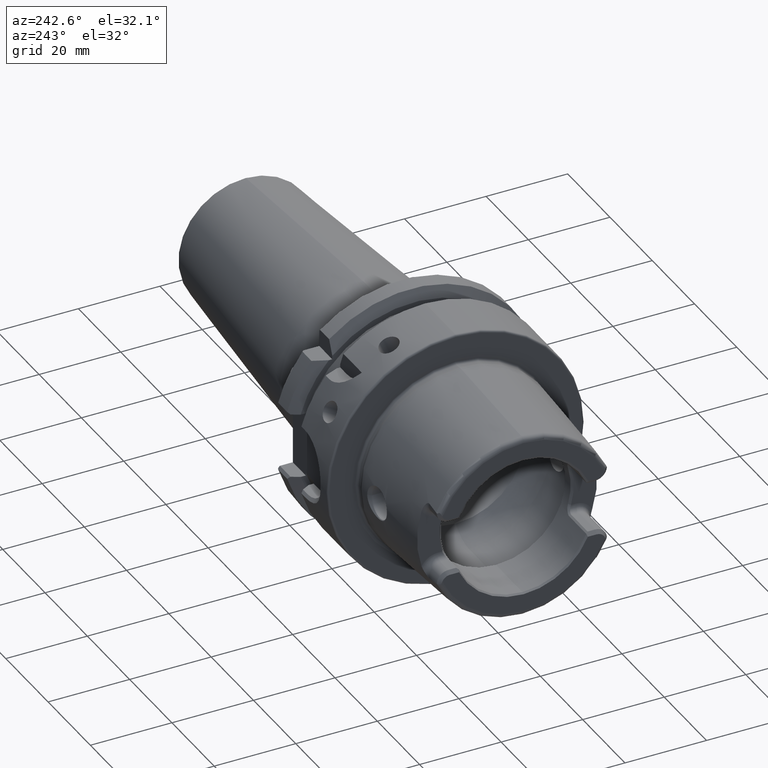
[diagram: clean part render]
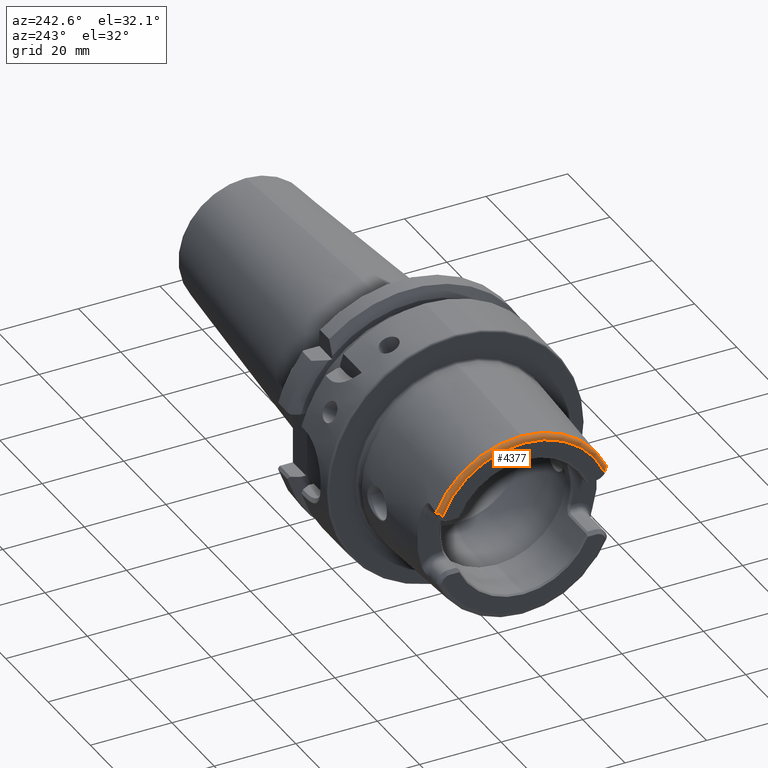
[diagram: same view with one face highlighted and labeled with its STEP entity id]
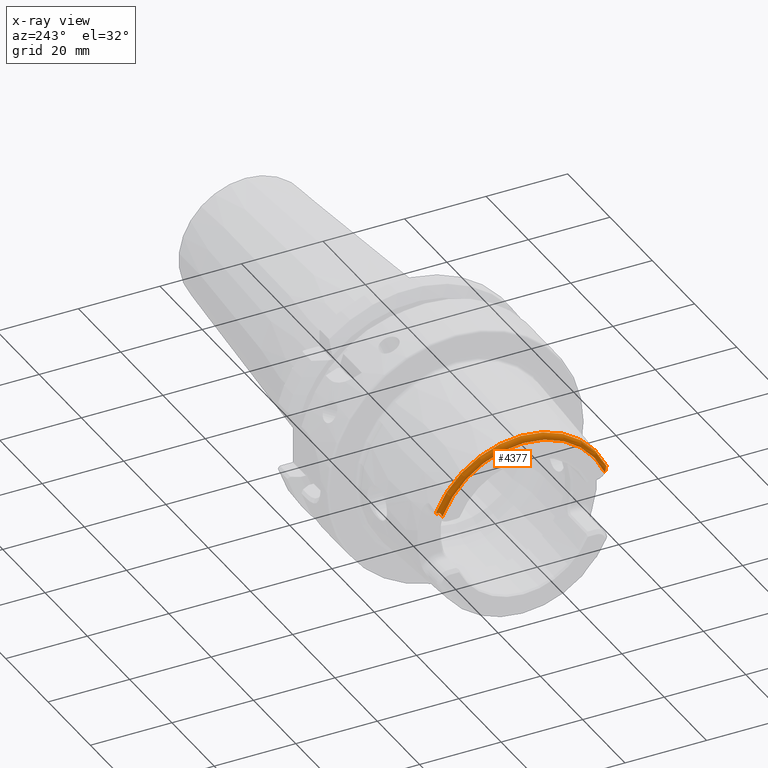
[diagram: x-ray of the same camera — body ghosted, the highlighted face saturated]
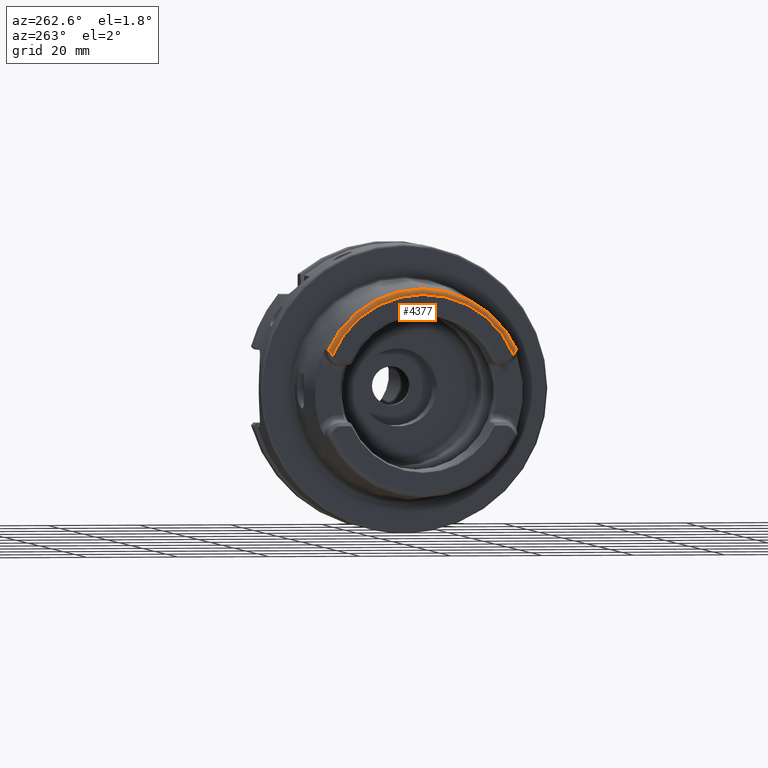
[diagram: same view with one face highlighted and labeled with its STEP entity id]
A machine part, auxiliary view. The second image highlights one B-rep face of the part: STEP entity #4377.
The next image is the same camera in x-ray: the body ghosted, the highlighted face saturated — about 0% of this face is hidden behind the body in this view.
A second angle (auxiliary view) of the same face is appended — the face is thin or edge-on in the first view.
In plain terms, the highlighted toroidal blend (fillet) surface has major radius 21.5761 mm and minor (blend) radius 1.2 mm.
Its self-contained STEP definition (entity closure, byte-faithful):
#12=CARTESIAN_POINT('',(-3.086004333271E1,0.E0,0.E0));
#13=DIRECTION('',(-1.E0,0.E0,0.E0));
#14=DIRECTION('',(0.E0,0.E0,1.E0));
#15=AXIS2_PLACEMENT_3D('',#12,#13,#14);
#1136=CARTESIAN_POINT('',(-3.086004333271E1,0.E0,0.E0));
#1137=DIRECTION('',(-1.E0,0.E0,0.E0));
#1138=DIRECTION('',(0.E0,-9.163649919573E-1,4.003438540993E-1));
#1139=AXIS2_PLACEMENT_3D('',#1136,#1137,#1138);
#1264=CARTESIAN_POINT('',(-3.12E1,2.086388901270E1,8.962484820140E0));
#1265=CARTESIAN_POINT('',(-3.114508193134E1,2.086667555068E1,9.005191767334E0));
#1266=CARTESIAN_POINT('',(-3.103476277035E1,2.086936614309E1,9.074974383683E0));
#1267=CARTESIAN_POINT('',(-3.091911920504E1,2.086973746634E1,9.110451561292E0));
#1268=CARTESIAN_POINT('',(-3.086004333271E1,2.086981840766E1,9.117659021249E0));
#1325=CARTESIAN_POINT('',(-3.12E1,2.086388901270E1,8.962484820140E0));
#1326=CARTESIAN_POINT('',(-3.123224973658E1,2.083419592954E1,9.002719514151E0));
#1327=CARTESIAN_POINT('',(-3.129620781423E1,2.077348032161E1,9.078060961540E0));
#1328=CARTESIAN_POINT('',(-3.139112717715E1,2.067924288417E1,9.173065271035E0));
#1329=CARTESIAN_POINT('',(-3.149177258252E1,2.057662536724E1,9.247948063830E0));
#1330=CARTESIAN_POINT('',(-3.159531222419E1,2.047098041171E1,9.285171175677E0));
#1331=CARTESIAN_POINT('',(-3.170118305740E1,2.036633756939E1,9.261970852533E0));
#1332=CARTESIAN_POINT('',(-3.179673840429E1,2.027428746545E1,9.166736549867E0));
#1333=CARTESIAN_POINT('',(-3.187255760131E1,2.019571142228E1,9.025234320014E0));
#1334=CARTESIAN_POINT('',(-3.192769354344E1,2.012626637534E1,8.869730746078E0));
#1335=CARTESIAN_POINT('',(-3.196904164143E1,2.005474275626E1,8.697024160456E0));
#1336=CARTESIAN_POINT('',(-3.199436015843E1,1.997975843364E1,8.514643442228E0));
#1337=CARTESIAN_POINT('',(-3.2E1,1.992871668258E1,8.393522095532E0));
#1338=CARTESIAN_POINT('',(-3.2E1,1.990238974402E1,8.331974653830E0));
#1340=CARTESIAN_POINT('',(-3.2E1,-1.990238974402E1,8.331974653830E0));
#1341=CARTESIAN_POINT('',(-3.2E1,-1.992820404578E1,8.392323646884E0));
#1342=CARTESIAN_POINT('',(-3.199459482397E1,-1.997824759926E1,
8.511050025283E0));
#1343=CARTESIAN_POINT('',(-3.197018283958E1,-2.005187318803E1,
8.689964576135E0));
#1344=CARTESIAN_POINT('',(-3.193090615025E1,-2.012146645820E1,
8.858427017470E0));
#1345=CARTESIAN_POINT('',(-3.187770014986E1,-2.018957491860E1,
9.011737174383E0));
#1346=CARTESIAN_POINT('',(-3.181170470046E1,-2.025931483277E1,
9.142036262052E0));
#1347=CARTESIAN_POINT('',(-3.172519430663E1,-2.034324279716E1,
9.244511180614E0));
#1348=CARTESIAN_POINT('',(-3.162295502402E1,-2.044322073957E1,
9.285994560789E0));
#1349=CARTESIAN_POINT('',(-3.151629898383E1,-2.055146680674E1,
9.261699484379E0));
#1350=CARTESIAN_POINT('',(-3.140915347590E1,-2.066103014214E1,
9.189133674289E0));
#1351=CARTESIAN_POINT('',(-3.130930135160E1,-2.076080858944E1,
9.092765783114E0));
#1352=CARTESIAN_POINT('',(-3.123713506791E1,-2.082969789126E1,
9.008814441803E0));
#1353=CARTESIAN_POINT('',(-3.12E1,-2.086388901270E1,8.962484820140E0));
#1355=CARTESIAN_POINT('',(-3.2E1,0.E0,0.E0));
#1356=DIRECTION('',(-1.E0,0.E0,0.E0));
#1357=DIRECTION('',(0.E0,-9.224287428258E-1,3.861673399044E-1));
#1358=AXIS2_PLACEMENT_3D('',#1355,#1356,#1357);
#1365=CARTESIAN_POINT('',(-3.086004333271E1,-2.086981840766E1,
9.117659021249E0));
#1366=CARTESIAN_POINT('',(-3.091979381169E1,-2.086973654204E1,
9.110369256957E0));
#1367=CARTESIAN_POINT('',(-3.103608390188E1,-2.086935414125E1,
9.074324780982E0));
#1368=CARTESIAN_POINT('',(-3.114562651794E1,-2.086664791840E1,
9.004768270448E0));
#1369=CARTESIAN_POINT('',(-3.12E1,-2.086388901270E1,8.962484820140E0));
#2762=CARTESIAN_POINT('',(-3.086004333271E1,0.E0,2.277456973022E1));
#2763=CARTESIAN_POINT('',(-3.086004333271E1,2.086981840766E1,9.117659021249E0));
#2764=VERTEX_POINT('',#2762);
#2765=VERTEX_POINT('',#2763);
#2766=CARTESIAN_POINT('',(-3.086004333271E1,-2.086981840766E1,
9.117659021249E0));
#2767=VERTEX_POINT('',#2766);
#2772=CARTESIAN_POINT('',(-3.2E1,-1.990238974402E1,8.331974653830E0));
#2773=VERTEX_POINT('',#2772);
#2780=CARTESIAN_POINT('',(-3.12E1,-2.086388901270E1,8.962484820140E0));
#2781=VERTEX_POINT('',#2780);
#2806=CARTESIAN_POINT('',(-3.2E1,1.990238974402E1,8.331974653830E0));
#2807=VERTEX_POINT('',#2806);
#2812=CARTESIAN_POINT('',(-3.12E1,2.086388901270E1,8.962484820140E0));
#2813=VERTEX_POINT('',#2812);
#4361=CARTESIAN_POINT('',(-3.08E1,0.E0,0.E0));
#4362=DIRECTION('',(1.E0,0.E0,0.E0));
#4363=DIRECTION('',(0.E0,-1.014813229860E-2,9.999485063796E-1));
#4364=AXIS2_PLACEMENT_3D('',#4361,#4362,#4363);
#4365=TOROIDAL_SURFACE('',#4364,2.157607283902E1,1.2E0);
#4366=ORIENTED_EDGE('',*,*,#4234,.F.);
#4367=ORIENTED_EDGE('',*,*,#4251,.T.);
#4368=ORIENTED_EDGE('',*,*,#3017,.F.);
#4369=ORIENTED_EDGE('',*,*,#4110,.F.);
#4371=ORIENTED_EDGE('',*,*,#4370,.T.);
#4373=ORIENTED_EDGE('',*,*,#4372,.F.);
#4374=ORIENTED_EDGE('',*,*,#4182,.T.);
#4375=EDGE_LOOP('',(#4366,#4367,#4368,#4369,#4371,#4373,#4374));
#4376=FACE_OUTER_BOUND('',#4375,.F.);
#4377=ADVANCED_FACE('',(#4376),#4365,.T.);
#16=CIRCLE('',#15,2.277456973022E1);
#1140=CIRCLE('',#1139,2.277456973022E1);
#1269=B_SPLINE_CURVE_WITH_KNOTS('',3,(#1264,#1265,#1266,#1267,#1268),
.UNSPECIFIED.,.F.,.F.,(4,1,4),(0.E0,5.E-1,1.E0),.UNSPECIFIED.);
#1339=B_SPLINE_CURVE_WITH_KNOTS('',3,(#1325,#1326,#1327,#1328,#1329,#1330,#1331,
#1332,#1333,#1334,#1335,#1336,#1337,#1338),.UNSPECIFIED.,.F.,.F.,(4,1,1,1,1,1,1,
1,1,1,1,4),(0.E0,9.090909090909E-2,1.818181818182E-1,2.727272727273E-1,
3.636363636364E-1,4.545454545455E-1,5.454545454545E-1,6.363636363636E-1,
7.272727272727E-1,8.181818181818E-1,9.090909090909E-1,1.E0),.UNSPECIFIED.);
#1354=B_SPLINE_CURVE_WITH_KNOTS('',3,(#1340,#1341,#1342,#1343,#1344,#1345,#1346,
#1347,#1348,#1349,#1350,#1351,#1352,#1353),.UNSPECIFIED.,.F.,.F.,(4,1,1,1,1,1,1,
1,1,1,1,4),(0.E0,9.090909090909E-2,1.818181818182E-1,2.727272727273E-1,
3.636363636364E-1,4.545454545455E-1,5.454545454545E-1,6.363636363636E-1,
7.272727272727E-1,8.181818181818E-1,9.090909090909E-1,1.E0),.UNSPECIFIED.);
#1359=CIRCLE('',#1358,2.157607283902E1);
#1370=B_SPLINE_CURVE_WITH_KNOTS('',3,(#1365,#1366,#1367,#1368,#1369),
.UNSPECIFIED.,.F.,.F.,(4,1,4),(0.E0,5.E-1,1.E0),.UNSPECIFIED.);
#3017=EDGE_CURVE('',#2764,#2765,#16,.T.);
#4110=EDGE_CURVE('',#2767,#2764,#1140,.T.);
#4182=EDGE_CURVE('',#2773,#2807,#1359,.T.);
#4234=EDGE_CURVE('',#2813,#2807,#1339,.T.);
#4251=EDGE_CURVE('',#2813,#2765,#1269,.T.);
#4370=EDGE_CURVE('',#2767,#2781,#1370,.T.);
#4372=EDGE_CURVE('',#2773,#2781,#1354,.T.);